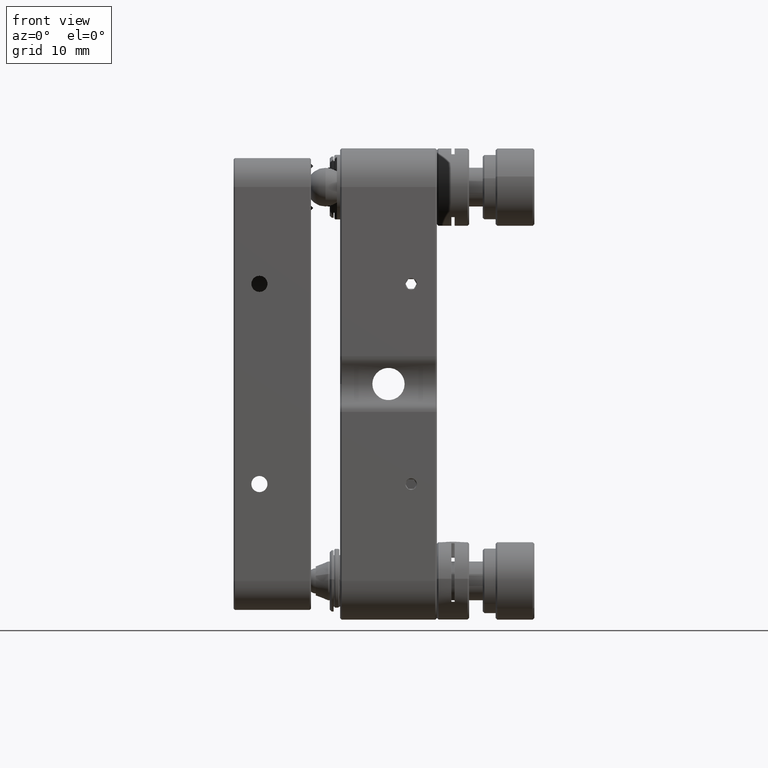
[diagram: clean part render]
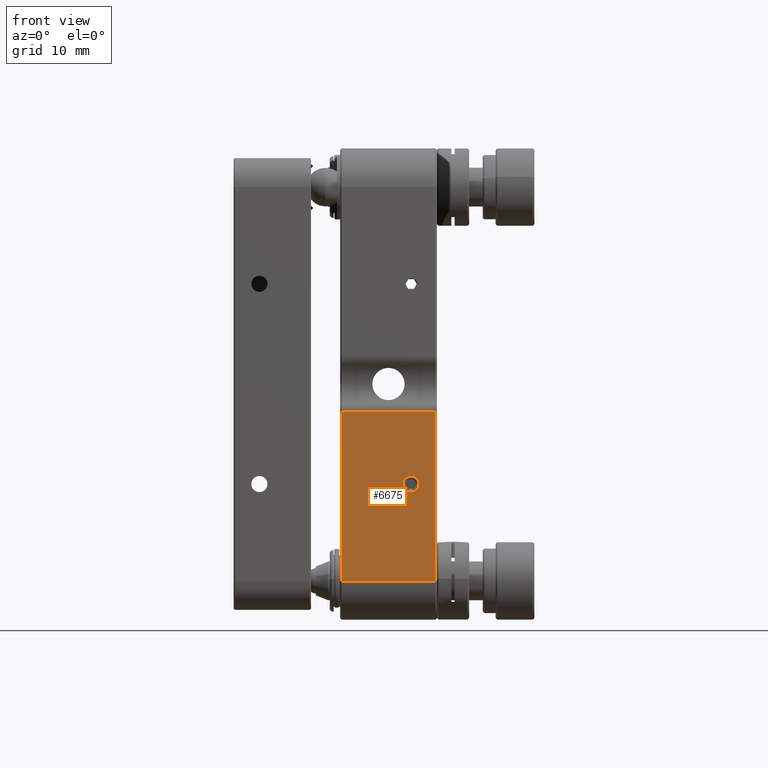
[diagram: same view with one face highlighted and labeled with its STEP entity id]
A machine part, front view. The second image highlights one B-rep face of the part: STEP entity #6675.
In plain terms, the highlighted planar face has unit normal (0, 1, 0).
Its self-contained STEP definition (entity closure, byte-faithful):
#942 = PLANE ( 'NONE',  #10046 ) ;
#1099 = CIRCLE ( 'NONE', #3549, 1.249999999999987121 ) ;
#1172 = FACE_OUTER_BOUND ( 'NONE', #10541, .T. ) ;
#1250 = CARTESIAN_POINT ( 'NONE',  ( 15.51966205132434418, -37.81707137695318721, -54.49999999999999289 ) ) ;
#1339 = CARTESIAN_POINT ( 'NONE',  ( 0.7696620513243588313, -37.81707137695318721, -48.49999999999998579 ) ) ;
#1536 = VECTOR ( 'NONE', #11445, 1000.000000000000000 ) ;
#1590 = DIRECTION ( 'NONE',  ( 1.000000000000000000, -0.000000000000000000, -0.000000000000000000 ) ) ;
#1804 = ORIENTED_EDGE ( 'NONE', *, *, #14661, .T. ) ;
#2163 = FACE_BOUND ( 'NONE', #13012, .T. ) ;
#2348 = CARTESIAN_POINT ( 'NONE',  ( 0.7696620513243588313, -37.81707137695318721, -54.49999999999999289 ) ) ;
#2660 = EDGE_CURVE ( 'NONE', #6286, #9793, #1099, .T. ) ;
#2784 = AXIS2_PLACEMENT_3D ( 'NONE', #6238, #9945, #14571 ) ;
#3351 = CARTESIAN_POINT ( 'NONE',  ( 15.51966205132434418, -37.81707137695319432, -22.33012701892217322 ) ) ;
#3549 = AXIS2_PLACEMENT_3D ( 'NONE', #10098, #14807, #6223 ) ;
#3577 = LINE ( 'NONE', #2348, #13614 ) ;
#3706 = EDGE_CURVE ( 'NONE', #13767, #6944, #13214, .T. ) ;
#4927 = CARTESIAN_POINT ( 'NONE',  ( 15.26966205132432997, -37.81707137695319432, -22.33012701892217322 ) ) ;
#5606 = ORIENTED_EDGE ( 'NONE', *, *, #14202, .F. ) ;
#6223 = DIRECTION ( 'NONE',  ( 0.000000000000000000, 0.000000000000000000, -1.000000000000000000 ) ) ;
#6238 = CARTESIAN_POINT ( 'NONE',  ( 11.51966205132434418, -37.81707137695318721, -33.49999999999999289 ) ) ;
#6286 = VERTEX_POINT ( 'NONE', #7836 ) ;
#6667 = EDGE_CURVE ( 'NONE', #6944, #6827, #12955, .T. ) ;
#6675 = ADVANCED_FACE ( 'NONE', ( #2163, #1172 ), #942, .F. ) ;
#6827 = VERTEX_POINT ( 'NONE', #4927 ) ;
#6944 = VERTEX_POINT ( 'NONE', #14656 ) ;
#7716 = CIRCLE ( 'NONE', #2784, 1.249999999999987121 ) ;
#7836 = CARTESIAN_POINT ( 'NONE',  ( 11.51966205132434418, -37.81707137695318721, -32.25000000000000711 ) ) ;
#8045 = LINE ( 'NONE', #3351, #1536 ) ;
#8978 = CARTESIAN_POINT ( 'NONE',  ( 0.7696620513243588313, -37.81707137695319432, -22.33012701892217322 ) ) ;
#9793 = VERTEX_POINT ( 'NONE', #10956 ) ;
#9945 = DIRECTION ( 'NONE',  ( 0.000000000000000000, -1.000000000000000000, -3.609449855437240983E-16 ) ) ;
#10046 = AXIS2_PLACEMENT_3D ( 'NONE', #1250, #12800, #14038 ) ;
#10098 = CARTESIAN_POINT ( 'NONE',  ( 11.51966205132434418, -37.81707137695318721, -33.49999999999999289 ) ) ;
#10541 = EDGE_LOOP ( 'NONE', ( #1804, #11547, #11789, #13947 ) ) ;
#10776 = VECTOR ( 'NONE', #15178, 1000.000000000000000 ) ;
#10912 = CARTESIAN_POINT ( 'NONE',  ( 15.51966205132434418, -37.81707137695318721, -48.49999999999998579 ) ) ;
#10956 = CARTESIAN_POINT ( 'NONE',  ( 11.51966205132434418, -37.81707137695318721, -34.74999999999998579 ) ) ;
#11445 = DIRECTION ( 'NONE',  ( -1.000000000000000000, -0.000000000000000000, -0.000000000000000000 ) ) ;
#11547 = ORIENTED_EDGE ( 'NONE', *, *, #14795, .T. ) ;
#11581 = VECTOR ( 'NONE', #1590, 1000.000000000000000 ) ;
#11751 = DIRECTION ( 'NONE',  ( 0.000000000000000000, 3.225580593103068619E-16, -1.000000000000000000 ) ) ;
#11789 = ORIENTED_EDGE ( 'NONE', *, *, #3706, .T. ) ;
#12462 = VERTEX_POINT ( 'NONE', #8978 ) ;
#12726 = CARTESIAN_POINT ( 'NONE',  ( 15.26966205132432997, -37.81707137695319432, -22.33012701892217322 ) ) ;
#12800 = DIRECTION ( 'NONE',  ( 0.000000000000000000, 1.000000000000000000, 3.225580593103068619E-16 ) ) ;
#12955 = LINE ( 'NONE', #12726, #10776 ) ;
#13012 = EDGE_LOOP ( 'NONE', ( #5606, #14620 ) ) ;
#13214 = LINE ( 'NONE', #10912, #11581 ) ;
#13614 = VECTOR ( 'NONE', #11751, 1000.000000000000000 ) ;
#13767 = VERTEX_POINT ( 'NONE', #1339 ) ;
#13947 = ORIENTED_EDGE ( 'NONE', *, *, #6667, .T. ) ;
#14038 = DIRECTION ( 'NONE',  ( 0.000000000000000000, -3.225580593103068619E-16, 1.000000000000000000 ) ) ;
#14202 = EDGE_CURVE ( 'NONE', #9793, #6286, #7716, .T. ) ;
#14571 = DIRECTION ( 'NONE',  ( 0.000000000000000000, 0.000000000000000000, -1.000000000000000000 ) ) ;
#14620 = ORIENTED_EDGE ( 'NONE', *, *, #2660, .F. ) ;
#14656 = CARTESIAN_POINT ( 'NONE',  ( 15.26966205132432997, -37.81707137695318721, -48.49999999999998579 ) ) ;
#14661 = EDGE_CURVE ( 'NONE', #6827, #12462, #8045, .T. ) ;
#14795 = EDGE_CURVE ( 'NONE', #12462, #13767, #3577, .T. ) ;
#14807 = DIRECTION ( 'NONE',  ( 0.000000000000000000, -1.000000000000000000, -3.609449855437240983E-16 ) ) ;
#15178 = DIRECTION ( 'NONE',  ( 0.000000000000000000, -3.225580593103068619E-16, 1.000000000000000000 ) ) ;